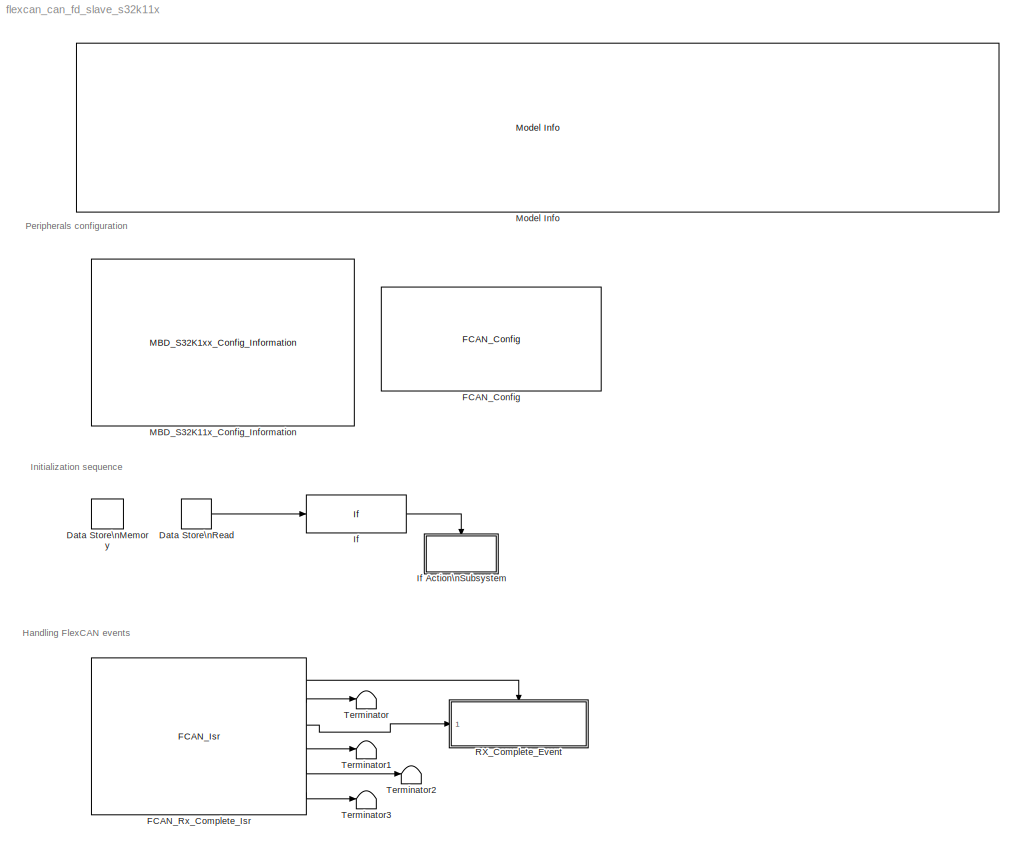
MODEL flexcan_can_fd_slave_s32k11x
KIND model
CONFIG InitFcn = mbd_s32k_consistency_checks(bdroot(gcs));
BLOCK [DataStoreMemory] Data Store\nMemory
  DataStoreName = Once
  OutDataTypeStr = uint32
  ReadBeforeWriteMsg = warning
  SID = 138
  ShowAdditionalParam = off
  WriteAfterReadMsg = warning
  WriteAfterWriteMsg = warning
BLOCK [DataStoreRead] Data Store\nRead
  DataStoreName = Once
  Ports = [0, 1]
  SID = 139
BLOCK [Reference] FCAN_Config  REF=mbd_s32k1xx_ec_toolbox/Communication Blocks/CAN Blocks/FCAN_Config
  Ports = []
  Priority = 1
  SID = 2
  SourceBlock = mbd_s32k1xx_ec_toolbox/Communication Blocks/CAN Blocks/FCAN_Config
  SourceType = fcan_s32k_config
  bitrate = 500
  bitrate_adv_opts = off
  can_cbt_presdiv = 1
  can_cbt_propseg = 27
  can_cbt_pseg1 = 5
  can_cbt_pseg2 = 5
  can_cbt_rjw = 3
  can_clk_src = Peripheral clock
  can_fd_enable = on
  can_fifo_id_filter = {'0x0', '0x0', '0x0', '0x0', '0x0', '0x0', '0x0', '0x0'}
  can_fifo_id_filter_extended = off
  can_fifo_id_filter_remote = off
  can_fifo_id_format = A
  can_idfilter_extendedid = off
  can_idfilter_id1 = 0
  can_idfilter_id2 = 0
  can_idfilter_remoteframe = off
  can_idfilter_type = Match exact
  can_instance = 0
  can_match_timeout = 1
  can_max_num_mb = 16
  can_mode = Normal mode
  can_multiple_matches_en = off
  can_num_id_filters = 8
  can_num_matches = 1
  can_payload = 8
  can_payloadfilter_dlchigh = 0
  can_payloadfilter_dlclow = 0
  can_payloadfilter_enable = off
  can_payloadfilter_payload1_b0 = 0
  can_payloadfilter_payload1_b1 = 0
  can_payloadfilter_payload1_b2 = 0
  can_payloadfilter_payload1_b3 = 0
  can_payloadfilter_payload1_b4 = 0
  can_payloadfilter_payload1_b5 = 0
  can_payloadfilter_payload1_b6 = 0
  can_payloadfilter_payload1_b7 = 0
  can_payloadfilter_payload2_b0 = 0
  can_payloadfilter_payload2_b1 = 0
  can_payloadfilter_payload2_b2 = 0
  can_payloadfilter_payload2_b3 = 0
  can_payloadfilter_payload2_b4 = 0
  can_payloadfilter_payload2_b5 = 0
  can_payloadfilter_payload2_b6 = 0
  can_payloadfilter_payload2_b7 = 0
  can_payloadfilter_type = Match exact
  can_pn_enable = off
  can_presdiv = 3
  can_propseg = 7
  can_pseg1 = 6
  can_pseg2 = 3
  can_rjw = 3
  can_rx = PTE4: [CAN0_RX | CAN Rx channel]
  can_rxfifo_enable = off
  can_timeout_en = off
  can_tx = PTE5: [CAN0_TX | CAN Tx Channel]
  can_wakeup_match = off
  can_wakeup_timeout = off
  show_adv_opts = on
BLOCK [Reference] FCAN_Rx_Complete_Isr  REF=mbd_s32k1xx_ec_toolbox/Communication Blocks/CAN Blocks/FCAN_Isr
  Ports = [0, 6]
  SID = 86
  SourceBlock = mbd_s32k1xx_ec_toolbox/Communication Blocks/CAN Blocks/FCAN_Isr
  SourceType = fcan_s32k_isr
  can_event = Rx Complete
  can_instance = 0
BLOCK [If] If
  IfExpression = u1 == 0
  Ports = [1, 1]
  SID = 144
  ShowElse = off
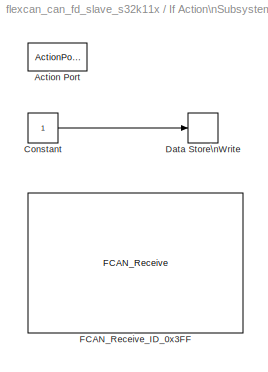
BLOCK [SubSystem] If Action\nSubsystem
  Ports = [0, 0, 0, 0, 0, 0, 0, 1]
  RequestExecContextInheritance = off
  SID = 145
  TreatAsAtomicUnit = on
  Variant = off
BLOCK [ActionPort] If Action\nSubsystem/Action Port
  SID = 147
BLOCK [Constant] If Action\nSubsystem/Constant
  OutDataTypeStr = uint32
  SID = 142
BLOCK [DataStoreWrite] If Action\nSubsystem/Data Store\nWrite
  DataStoreName = Once
  Ports = [1]
  SID = 141
BLOCK [Reference] If Action\nSubsystem/FCAN_Receive_ID_0x3FF  REF=mbd_s32k1xx_ec_toolbox/Communication Blocks/CAN Blocks/FCAN_Receive
  Ports = []
  SID = 194
  SourceBlock = mbd_s32k1xx_ec_toolbox/Communication Blocks/CAN Blocks/FCAN_Receive
  SourceType = fcan_s32k_receive
  can_extended_id = off
  can_fd_enable = on
  can_id = 3FF
  can_instance = 0
  can_is_remote = off
  can_mb_idx = 14
  can_mode = Non-blocking
  can_msg_mask = FFFFFFFF
  can_timeout_ms = 0
  can_use_rxfifo = off
  show_adv_opts = on
BLOCK [Reference] MBD_S32K11x_Config_Information  REF=mbd_s32k1xx_ec_toolbox/MBD_S32K1xx_Config_Information
  ADC_PcrCheckEnDis = on
  AMMCLIB_PcrCheckEnDis = on
  CMP_PcrCheckEnDis = on
  CSEc_PcrCheckEnDis = on
  ConfigParams_PcrCheckEnDis = on
  FM_PcrCheckEnDis = on
  FTM_Dual_Edge_Inputs_PcrCheckEnDis = on
  FTM_Hall_Sensor_Inputs_PcrCheckEnDis = on
  FTM_Input_Edge_Inputs_PcrCheckEnDis = on
  FTM_PWM_PcrCheckEnDis = on
  FTM_Quadrature_Inputs_PcrCheckEnDis = on
  FlexCAN_PcrCheckEnDis = on
  FlexIO_PcrCheckEnDis = on
  GPIO_InputPcrCheckEnDis = on
  GPIO_OutputPcrCheckEnDis = on
  LIN_PcrCheckEnDis = on
  LPI2C_PcrCheckEnDis = on
  LPSPI_PcrCheckEnDis = on
  LPTMR_PcrCheckEnDis = on
  LPUART_PcrCheckEnDis = on
  ModelRef_PcrCheckEnDis = on
  PDB0_PcrCheckEnDis = on
  PIT_PcrCheckEnDis = on
  Ports = []
  Profile_PcrCheckEnDis = on
  RTC_PcrCheckEnDis = on
  SBC_PcrCheckEnDis = on
  SID = 228
  SourceBlock = mbd_s32k1xx_ec_toolbox/MBD_S32K1xx_Config_Information
  SourceType = MBDTBX_EC_S32K
  WDOG_PcrCheckEnDis = on
  config_params = []
  disp_str = Target : S32K144-64KB_SRAM\nPackage : 100-pin\nSystem clock : 80 MHz\nXTAL clock : External 8 MHz\nCompiler : IAR\nTarget Type : FLASH\nDownload Code after build : off\nStep Tick Interrupt Priority : 15
  ds_import_enable = on
  eDMA_PcrCheckEnDis = on
  gcc_target_assemble_opts = -mcpu=cortex-m0plus -mthumb -g
  gcc_target_compile_opts = -mcpu=cortex-m0plus -mthumb -O1 -g -gstrict-dwarf
  gcc_target_default_lcf = on
  gcc_target_link_opts = -mcpu=cortex-m0plus -mthumb
  gcc_target_user_lcf = S32K116_17_flash.ld
  ghs_target_assemble_opts = -thumb -preprocess_assembly_files -fsoft --gnu_asm
  ghs_target_compile_opts = -thumb -Ogeneral -Wundef -Wimplicit-int -Wshadow -Wtrigraphs --no_commons --gnu_asm -gdwarf-2 -G  -c99
  ghs_target_default_lcf = on
  ghs_target_link_opts = -thumb
  ghs_target_user_lcf = S32K116_17_flash.ld
  iar_target_assemble_opts = --thumb
  iar_target_compile_opts = --thumb -Ol -e --debug --dlib_config normal
  iar_target_default_lcf = on
  iar_target_link_opts = --no_exceptions --vfe --inline
  iar_target_user_lcf = S32K116_17_flash.icf
  mbdt_ver = 0
  mcu_steptick_prio = 3
  mcu_steptick_timer = LPIT Channel 0
  mcu_system_clock_freq = 40
  mcu_target_name = S32K116
  mcu_target_package = 48-LQFP
  mcu_target_sram_size = 17KB
  mcu_xtal_freq = External 40
  pil_download_enable = off
  pil_download_rate = 57600
  pil_opensda_drive = Custom
  pil_opensda_drive_custom = D
  pil_uart_instance = 0
  pil_uart_rx = PTB0: [LPUART0_RX | Receive]
  pil_uart_tx = PTB1: [LPUART0_TX | Transmit]
  rbl_com_port = Custom
  rbl_com_port_custom = COM1
  rbl_download_enable = on
  rbl_download_interface = OpenSDA
  rbl_restart_request = off
  rbl_start_delay = 5000
  target_compiler = GCC
  target_memory = FLASH
BLOCK [Reference] Model Info  REF=simulink/Model-Wide\nUtilities/Model Info
  DisplayStringWithTags = Model Name: %<ModelName>\n\nDescription: %<Description>
  Frame = off
  HorizontalTextAlignment = Left
  LeftAlignmentValue = 0.02
  MaskDisplayString = Model Name: flexcan_can_fd_slave_s32k11x\\n\\nDescription: This model tests CAN FD for the FlexCan communication.\\nIt waits for CAN FD messages with ID 0x3FF. On each received message Red LED (PTD15) is toggled.\\n \\nHW prerequisite:\\n- S32K116EVB-Q048/S32K118EVB\\n- Make sure that J107 has pin 1 and 2 connected and external power supply is provieded through J16.\\n\\nValidation:\\n- The CAN Ba...<+126ch>
  Ports = []
  SID = 74
  SourceBlock = simulink/Model-Wide\nUtilities/Model Info
  SourceProductBaseCode = SL
  SourceProductName = Simulink
  SourceType = CMBlock
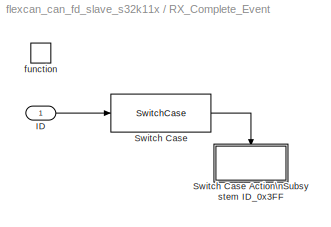
BLOCK [SubSystem] RX_Complete_Event
  Ports = [1, 0, 0, 1]
  RTWSystemCode = Nonreusable function
  RequestExecContextInheritance = off
  SID = 160
  TreatAsAtomicUnit = on
  Variant = off
BLOCK [Inport] RX_Complete_Event/ID
  IconDisplay = Port number
  SID = 175
BLOCK [SwitchCase] RX_Complete_Event/Switch Case
  CaseConditions = {hex2dec('3FF')}
  Ports = [1, 1]
  SID = 90
  ShowDefaultCase = off
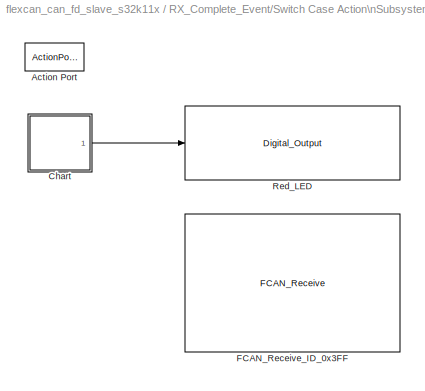
BLOCK [SubSystem] RX_Complete_Event/Switch Case Action\nSubsystem ID_0x3FF
  Ports = [0, 0, 0, 0, 0, 0, 0, 1]
  RequestExecContextInheritance = off
  SID = 198
  TreatAsAtomicUnit = on
  Variant = off
BLOCK [ActionPort] RX_Complete_Event/Switch Case Action\nSubsystem ID_0x3FF/Action Port
  SID = 199
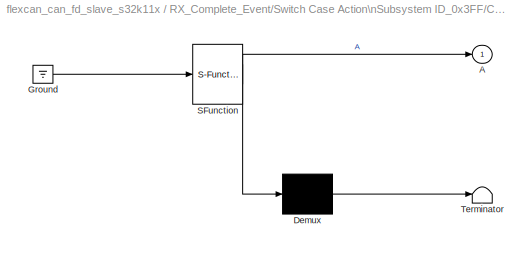
BLOCK [SubSystem] RX_Complete_Event/Switch Case Action\nSubsystem ID_0x3FF/Chart
  ErrorFcn = Stateflow.Translate.translate
  PermitHierarchicalResolution = ExplicitOnly
  Ports = [0, 1]
  RequestExecContextInheritance = off
  SFBlockType = Chart
  SID = 200
  TreatAsAtomicUnit = on
  Variant = off
BLOCK [Outport] RX_Complete_Event/Switch Case Action\nSubsystem ID_0x3FF/Chart/ A
  IconDisplay = Port number
  SID = 200::6
BLOCK [Demux] RX_Complete_Event/Switch Case Action\nSubsystem ID_0x3FF/Chart/ Demux 
  Outputs = 1
  Ports = [1, 1]
  SID = 200::36
BLOCK [Ground] RX_Complete_Event/Switch Case Action\nSubsystem ID_0x3FF/Chart/ Ground 
  SID = 200::38
BLOCK [S-Function] RX_Complete_Event/Switch Case Action\nSubsystem ID_0x3FF/Chart/ SFunction 
  EnableBusSupport = off
  FunctionName = sf_sfun
  PortCounts = [1 2]
  Ports = [1, 2]
  SFcnIsStateOwnerBlock = off
  SFunctionDeploymentMode = off
  SID = 200::35
  Tag = Stateflow S-Function flexcan_can_fd_slave_s32k11x 2
BLOCK [Terminator] RX_Complete_Event/Switch Case Action\nSubsystem ID_0x3FF/Chart/ Terminator 
  SID = 200::37
BLOCK [Reference] RX_Complete_Event/Switch Case Action\nSubsystem ID_0x3FF/FCAN_Receive_ID_0x3FF  REF=mbd_s32k1xx_ec_toolbox/Communication Blocks/CAN Blocks/FCAN_Receive
  Ports = []
  SID = 202
  SourceBlock = mbd_s32k1xx_ec_toolbox/Communication Blocks/CAN Blocks/FCAN_Receive
  SourceType = fcan_s32k_receive
  can_extended_id = off
  can_fd_enable = on
  can_id = 3FF
  can_instance = 0
  can_is_remote = off
  can_mb_idx = 14
  can_mode = Non-blocking
  can_msg_mask = FFFFFFFF
  can_timeout_ms = 0
  can_use_rxfifo = off
  show_adv_opts = on
BLOCK [Reference] RX_Complete_Event/Switch Case Action\nSubsystem ID_0x3FF/Red_LED  REF=mbd_s32k1xx_ec_toolbox/GPIO Blocks/Digital_Output
  Ports = [1]
  SID = 201
  SourceBlock = mbd_s32k1xx_ec_toolbox/GPIO Blocks/Digital_Output
  SourceType = gpio_s32k_output
  drive_strength = Low
  gpio_pin = PTD16: [PTD16 | Port D I/O]
  init_val = Low
BLOCK [TriggerPort] RX_Complete_Event/function
  Ports = []
  SID = 161
  StatesWhenEnabling = held
  TriggerType = function-call
  VariantControl = Variant
BLOCK [Terminator] Terminator
  SID = 221
BLOCK [Terminator] Terminator1
  SID = 220
BLOCK [Terminator] Terminator2
  SID = 219
BLOCK [Terminator] Terminator3
  SID = 226
ANNOTATION (root): Handling FlexCAN events
ANNOTATION (root): Initialization sequence
ANNOTATION (root): Peripherals configuration
LINE Data Store\nRead:1 -> If:1
LINE FCAN_Rx_Complete_Isr:1 -> RX_Complete_Event:trigger
LINE FCAN_Rx_Complete_Isr:2 -> Terminator:1
LINE FCAN_Rx_Complete_Isr:3 -> RX_Complete_Event:1
LINE FCAN_Rx_Complete_Isr:4 -> Terminator1:1
LINE FCAN_Rx_Complete_Isr:5 -> Terminator2:1
LINE FCAN_Rx_Complete_Isr:6 -> Terminator3:1
LINE If Action\nSubsystem/Constant:1 -> If Action\nSubsystem/Data Store\nWrite:1
LINE If:1 -> If Action\nSubsystem:ifaction
LINE RX_Complete_Event/ID:1 -> RX_Complete_Event/Switch Case:1
LINE RX_Complete_Event/Switch Case Action\nSubsystem ID_0x3FF/Chart/ Demux :1 -> RX_Complete_Event/Switch Case Action\nSubsystem ID_0x3FF/Chart/ Terminator :1
LINE RX_Complete_Event/Switch Case Action\nSubsystem ID_0x3FF/Chart/ Ground :1 -> RX_Complete_Event/Switch Case Action\nSubsystem ID_0x3FF/Chart/ SFunction :1
LINE RX_Complete_Event/Switch Case Action\nSubsystem ID_0x3FF/Chart/ SFunction :1 -> RX_Complete_Event/Switch Case Action\nSubsystem ID_0x3FF/Chart/ Demux :1
LINE RX_Complete_Event/Switch Case Action\nSubsystem ID_0x3FF/Chart/ SFunction :2 -> RX_Complete_Event/Switch Case Action\nSubsystem ID_0x3FF/Chart/ A:1
LINE RX_Complete_Event/Switch Case Action\nSubsystem ID_0x3FF/Chart:1 -> RX_Complete_Event/Switch Case Action\nSubsystem ID_0x3FF/Red_LED:1
LINE RX_Complete_Event/Switch Case:1 -> RX_Complete_Event/Switch Case Action\nSubsystem ID_0x3FF:ifaction
CHART RX_Complete_Event/Switch Case Action\nSubsystem ID_0x3FF/Chart states=2 transitions=3
  STATE_LABEL 'A'
  STATE_LABEL 'A1'
